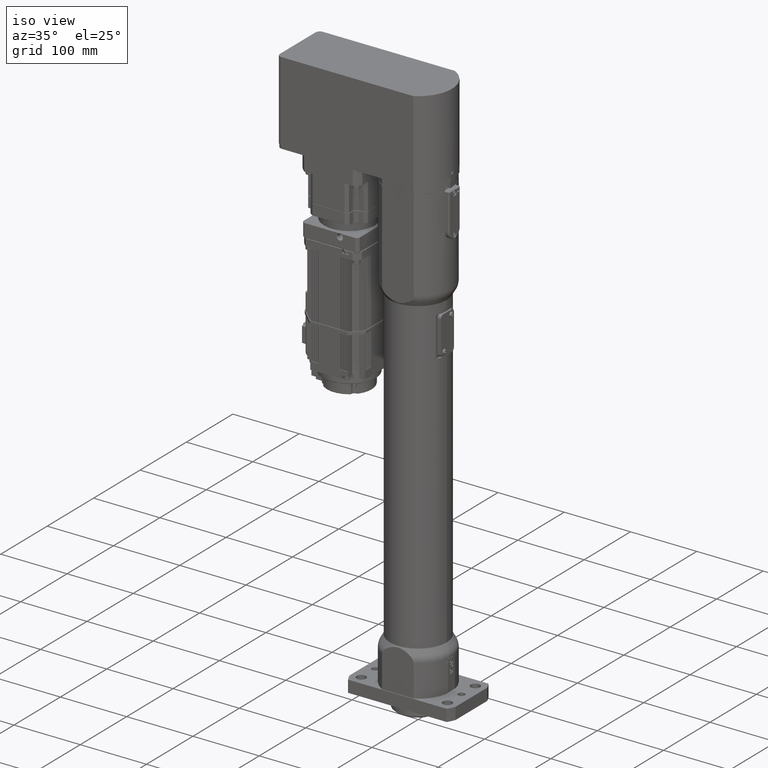
[diagram: clean part render]
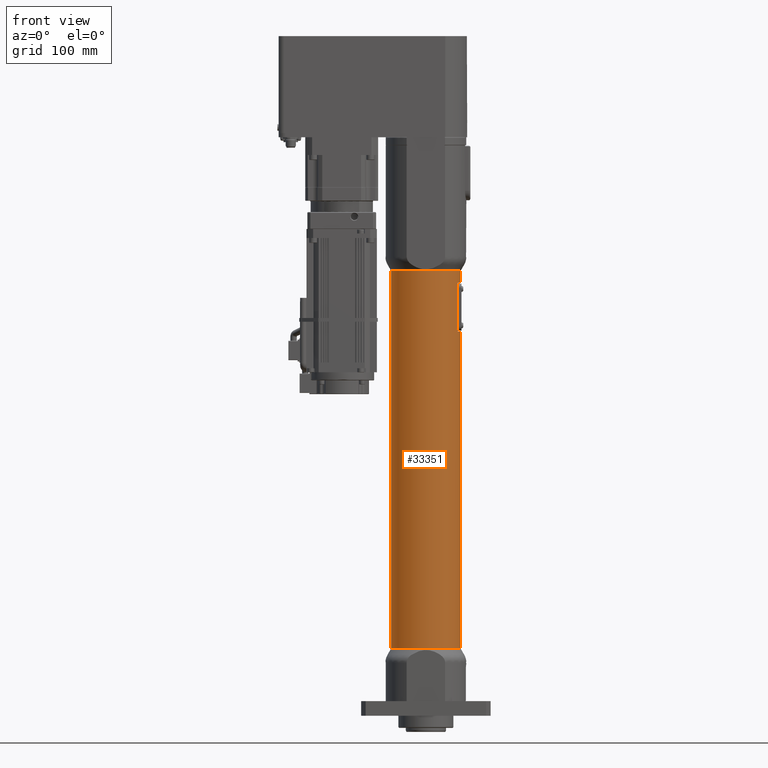
[diagram: tour spotlight — one face highlighted and labeled with its STEP entity id]
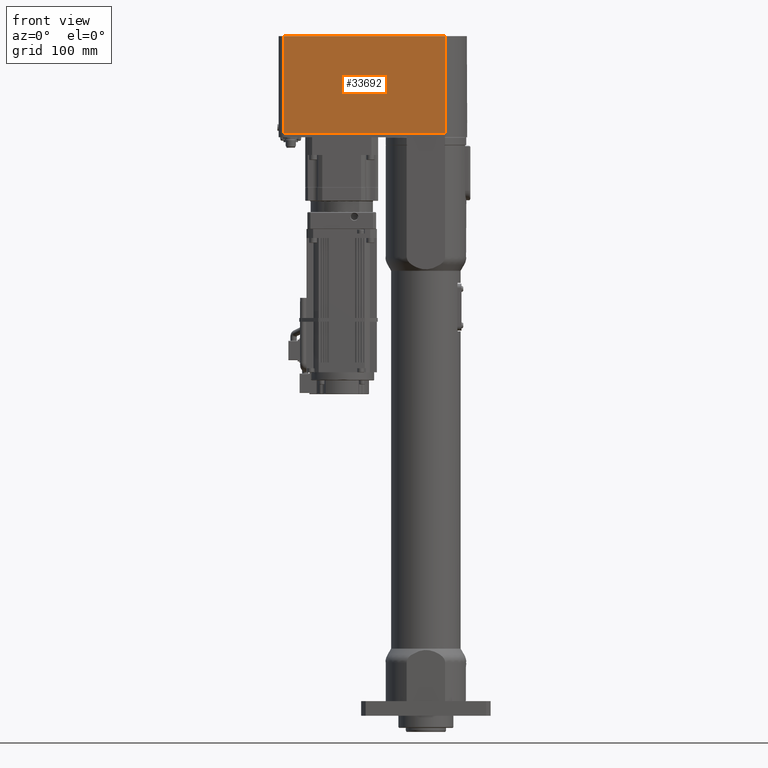
[diagram: tour spotlight — one face highlighted and labeled with its STEP entity id]
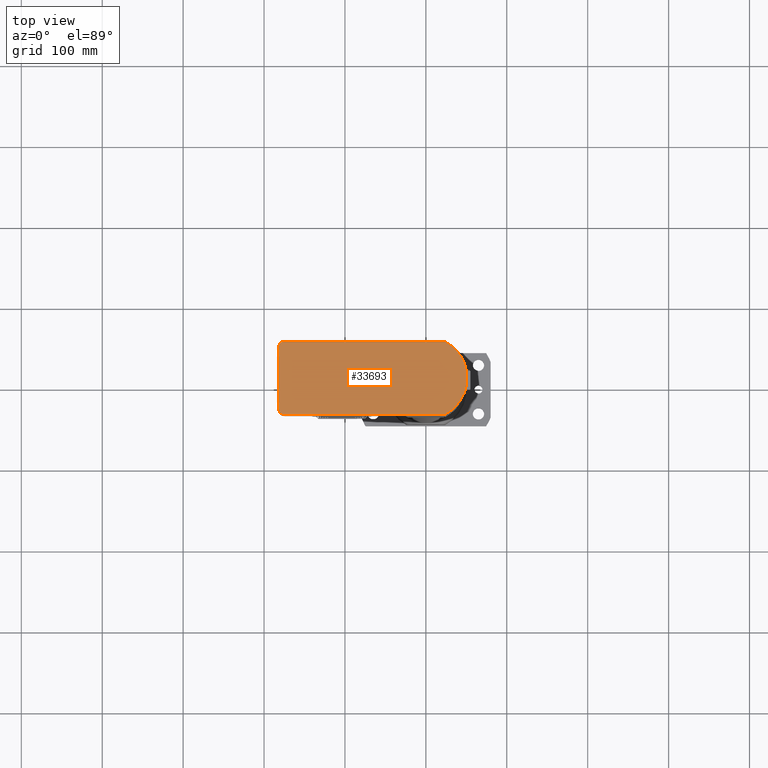
[diagram: tour spotlight — one face highlighted and labeled with its STEP entity id]
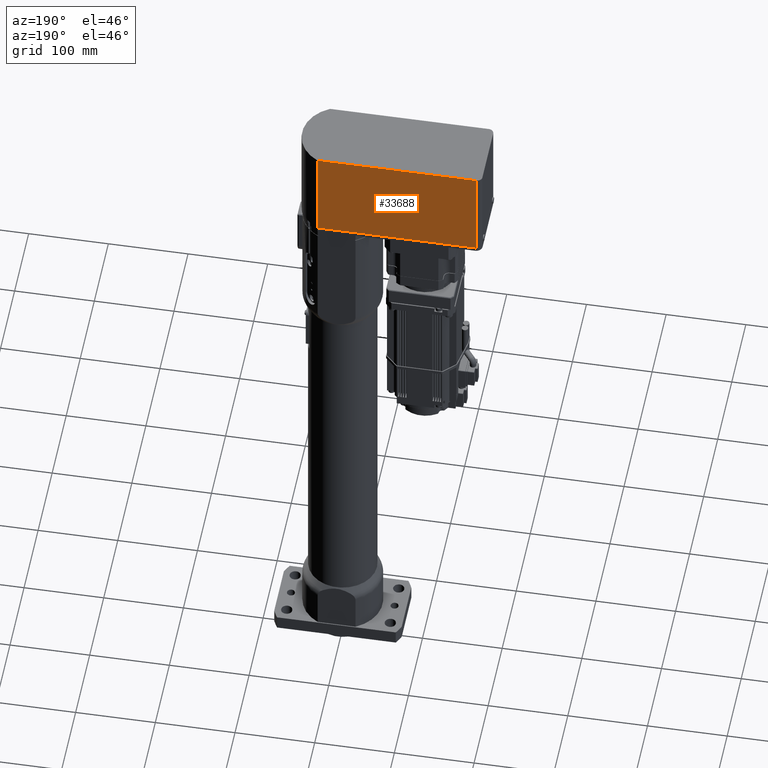
[diagram: tour spotlight — one face highlighted and labeled with its STEP entity id]
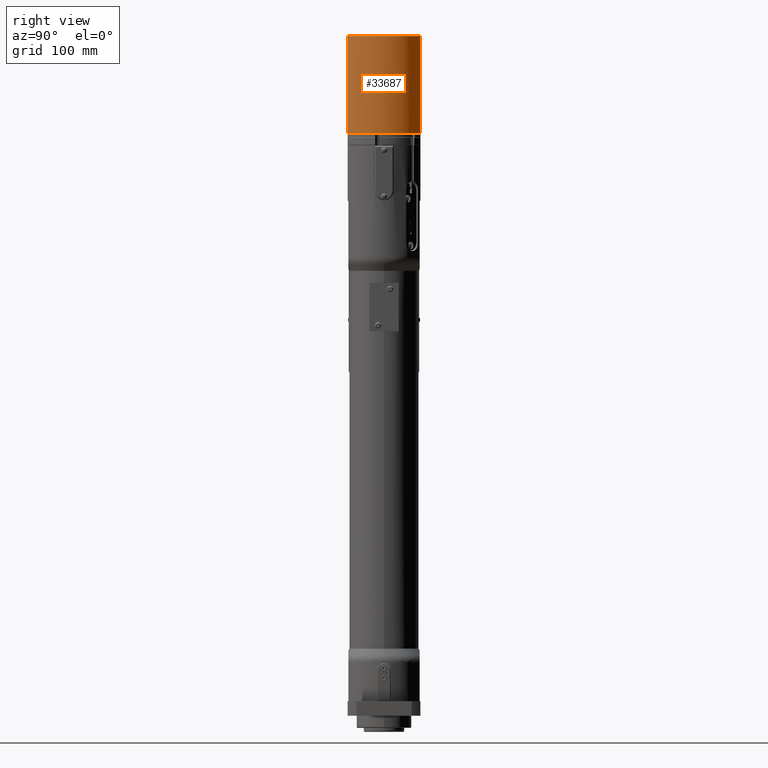
[diagram: tour spotlight — one face highlighted and labeled with its STEP entity id]
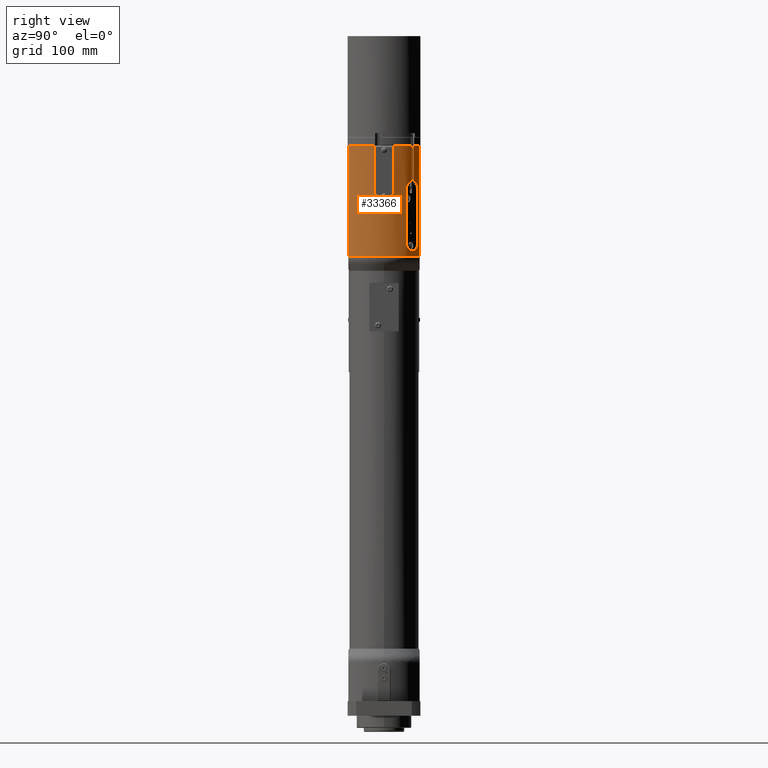
[diagram: tour spotlight — one face highlighted and labeled with its STEP entity id]
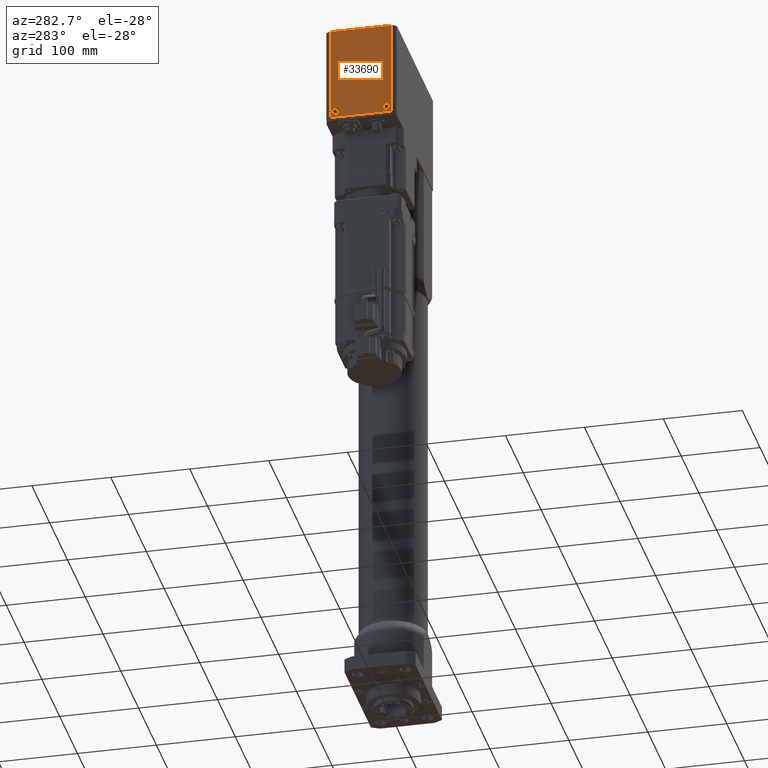
[diagram: tour spotlight — one face highlighted and labeled with its STEP entity id]
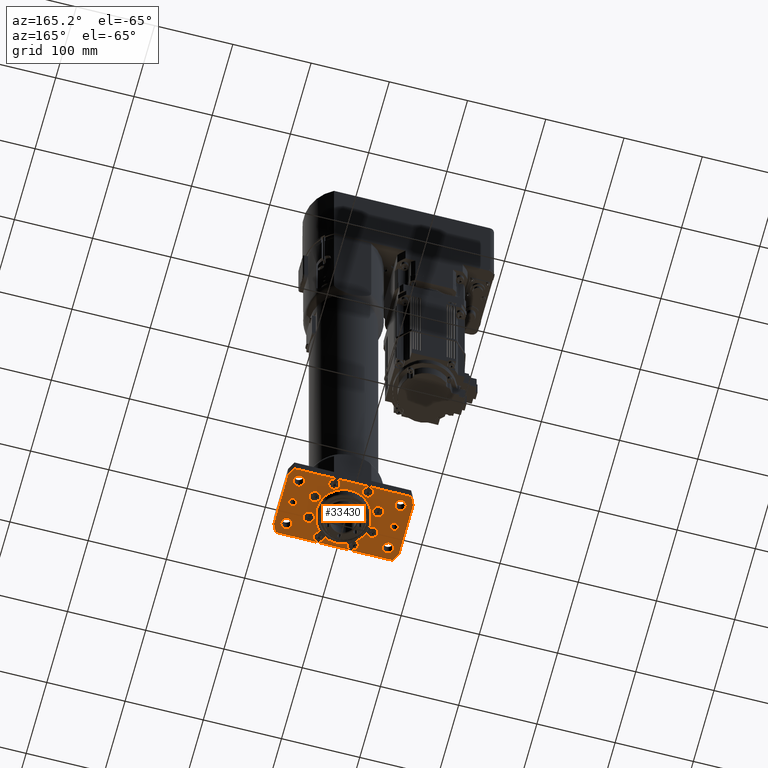
[diagram: tour spotlight — one face highlighted and labeled with its STEP entity id]
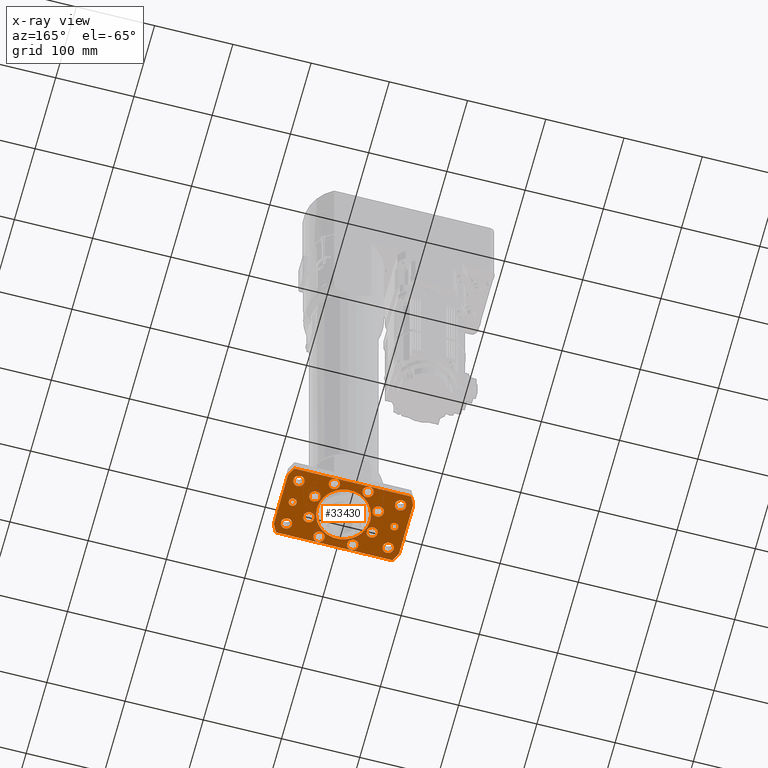
[diagram: x-ray of the same camera — body ghosted, this tour face saturated]
A machine part: a face-by-face anatomy tour. The part has 1806 B-rep faces; the first image is the clean iso view, then the 8 largest visible faces are spotlighted one at a time (largest first), each with its STEP entity span.

Face 1 — front view, entity #33351. In plain terms, the highlighted cylindrical surface (bore or boss wall) has radius 43 mm, axis along (-0, 0, 1).
Definition (entity closure, byte-faithful):
#2969=FACE_OUTER_BOUND('',#4852,.T.);
#4852=EDGE_LOOP('',(#25943,#25944,#25945,#25946,#25947,#25948,#25949,#25950,
#25951,#25952,#25953,#25954));
#6553=CIRCLE('',#35960,43.);
#6554=CIRCLE('',#35961,43.);
#6555=CIRCLE('',#35962,43.);
#6556=CIRCLE('',#35963,43.);
#6557=CIRCLE('',#35964,43.);
#6558=CIRCLE('',#35965,43.);
#9195=LINE('',#53810,#11891);
#9207=LINE('',#53862,#11903);
#9208=LINE('',#53866,#11904);
#9209=LINE('',#53870,#11905);
#11891=VECTOR('',#42825,10.);
#11903=VECTOR('',#42871,43.);
#11904=VECTOR('',#42874,10.);
#11905=VECTOR('',#42877,43.);
#14612=VERTEX_POINT('',#53807);
#14613=VERTEX_POINT('',#53809);
#14635=VERTEX_POINT('',#53859);
#14636=VERTEX_POINT('',#53861);
#14637=VERTEX_POINT('',#53863);
#14638=VERTEX_POINT('',#53865);
#14639=VERTEX_POINT('',#53867);
#14640=VERTEX_POINT('',#53869);
#18626=EDGE_CURVE('',#14613,#14612,#9195,.T.);
#18649=EDGE_CURVE('',#14635,#14635,#6553,.T.);
#18650=EDGE_CURVE('',#14635,#14636,#9207,.T.);
#18651=EDGE_CURVE('',#14636,#14637,#6554,.T.);
#18652=EDGE_CURVE('',#14637,#14638,#9208,.T.);
#18653=EDGE_CURVE('',#14638,#14639,#6555,.T.);
#18654=EDGE_CURVE('',#14639,#14640,#9209,.T.);
#18655=EDGE_CURVE('',#14640,#14640,#6556,.T.);
#18656=EDGE_CURVE('',#14639,#14613,#6557,.T.);
#18657=EDGE_CURVE('',#14612,#14636,#6558,.T.);
#25943=ORIENTED_EDGE('',*,*,#18649,.F.);
#25944=ORIENTED_EDGE('',*,*,#18650,.T.);
#25945=ORIENTED_EDGE('',*,*,#18651,.T.);
#25946=ORIENTED_EDGE('',*,*,#18652,.T.);
#25947=ORIENTED_EDGE('',*,*,#18653,.T.);
#25948=ORIENTED_EDGE('',*,*,#18654,.T.);
#25949=ORIENTED_EDGE('',*,*,#18655,.F.);
#25950=ORIENTED_EDGE('',*,*,#18654,.F.);
#25951=ORIENTED_EDGE('',*,*,#18656,.T.);
#25952=ORIENTED_EDGE('',*,*,#18626,.T.);
#25953=ORIENTED_EDGE('',*,*,#18657,.T.);
#25954=ORIENTED_EDGE('',*,*,#18650,.F.);
#30398=CYLINDRICAL_SURFACE('',#35959,43.);
#33351=ADVANCED_FACE('',(#2969),#30398,.T.);
#35959=AXIS2_PLACEMENT_3D('',#53858,#42867,#42868);
#35960=AXIS2_PLACEMENT_3D('',#53860,#42869,#42870);
#35961=AXIS2_PLACEMENT_3D('',#53864,#42872,#42873);
#35962=AXIS2_PLACEMENT_3D('',#53868,#42875,#42876);
#35963=AXIS2_PLACEMENT_3D('',#53871,#42878,#42879);
#35964=AXIS2_PLACEMENT_3D('',#53872,#42880,#42881);
#35965=AXIS2_PLACEMENT_3D('',#53873,#42882,#42883);
#42825=DIRECTION('',(-1.66741034889409E-13,7.79443320540401E-15,1.));
#42867=DIRECTION('center_axis',(-1.66741034889409E-13,7.79443320540401E-15,
1.));
#42868=DIRECTION('ref_axis',(-1.,1.29112725371859E-13,-1.6674103488941E-13));
#42869=DIRECTION('center_axis',(-1.66741034889409E-13,7.79443320540401E-15,
1.));
#42870=DIRECTION('ref_axis',(-1.,1.29112725371859E-13,-1.6674103488941E-13));
#42871=DIRECTION('',(1.66741034889409E-13,-7.79443320540401E-15,-1.));
#42872=DIRECTION('center_axis',(-1.66741034889409E-13,7.79443320540401E-15,
1.));
#42873=DIRECTION('ref_axis',(-1.,1.29112725371859E-13,-1.6674103488941E-13));
#42874=DIRECTION('',(1.66741034889409E-13,-7.79443320540401E-15,-1.));
#42875=DIRECTION('center_axis',(1.66741034889409E-13,-7.79443320540401E-15,
-1.));
#42876=DIRECTION('ref_axis',(-1.,1.29112725371859E-13,-1.6674103488941E-13));
#42877=DIRECTION('',(1.66741034889409E-13,-7.79443320540401E-15,-1.));
#42878=DIRECTION('center_axis',(1.66741034889409E-13,-7.79443320540401E-15,
-1.));
#42879=DIRECTION('ref_axis',(-1.,1.29112725371859E-13,-1.6674103488941E-13));
#42880=DIRECTION('center_axis',(1.66741034889409E-13,-7.79443320540401E-15,
-1.));
#42881=DIRECTION('ref_axis',(-1.,1.29112725371859E-13,-1.6674103488941E-13));
#42882=DIRECTION('center_axis',(-1.66741034889409E-13,7.79443320540401E-15,
1.));
#42883=DIRECTION('ref_axis',(-1.,1.29112725371859E-13,-1.6674103488941E-13));
#53807=CARTESIAN_POINT('',(39.0000000000456,-18.1107702762981,535.000000000062));
#53809=CARTESIAN_POINT('',(39.0000000000556,-18.1107702762986,475.000000000062));
#53810=CARTESIAN_POINT('',(39.000000000121,-18.1107702763017,83.0000000000619));
#53858=CARTESIAN_POINT('Origin',(1.23301118377245E-10,-2.17872019682475E-11,
83.0000000000553));
#53859=CARTESIAN_POINT('',(43.0000000000454,-2.36937828710775E-11,550.000000000063));
#53860=CARTESIAN_POINT('Origin',(4.54330550838906E-11,-1.81472016613238E-11,
550.000000000055));
#53861=CARTESIAN_POINT('',(43.0000000000479,-2.38106993691585E-11,535.000000000063));
#53862=CARTESIAN_POINT('',(43.0000000001233,-2.73337831780011E-11,83.0000000000625));
#53863=CARTESIAN_POINT('',(39.0000000000503,18.1107702762515,535.000000000062));
#53864=CARTESIAN_POINT('Origin',(4.79341706072317E-11,-1.82641181594049E-11,
535.000000000055));
#53865=CARTESIAN_POINT('',(39.0000000000603,18.1107702762511,475.000000000062));
#53866=CARTESIAN_POINT('',(39.0000000001256,18.110770276248,83.0000000000617));
#53867=CARTESIAN_POINT('',(43.0000000000579,-2.42783653614828E-11,475.000000000063));
#53868=CARTESIAN_POINT('Origin',(5.79386327005963E-11,-1.87317841517291E-11,
475.000000000055));
#53869=CARTESIAN_POINT('',(43.0000000001233,-2.73337831780011E-11,83.0000000000625));
#53870=CARTESIAN_POINT('',(43.0000000001233,-2.73337831780011E-11,83.0000000000625));
#53871=CARTESIAN_POINT('Origin',(1.23301118377245E-10,-2.17872019682475E-11,
83.0000000000553));
#53872=CARTESIAN_POINT('Origin',(5.79386327005963E-11,-1.87317841517291E-11,
475.000000000055));
#53873=CARTESIAN_POINT('Origin',(4.79341706072317E-11,-1.82641181594049E-11,
535.000000000055));

Face 2 — front view, entity #33692. In plain terms, the highlighted planar face has unit normal (-0, -1, 0).
Definition (entity closure, byte-faithful):
#1405=PLANE('',#36620);
#3310=FACE_OUTER_BOUND('',#5243,.T.);
#5243=EDGE_LOOP('',(#27622,#27623,#27624,#27625,#27626));
#9594=LINE('',#56416,#12290);
#9605=LINE('',#56490,#12301);
#9606=LINE('',#56494,#12302);
#9607=LINE('',#56495,#12303);
#9608=LINE('',#56496,#12304);
#12290=VECTOR('',#44554,10.);
#12301=VECTOR('',#44585,10.);
#12302=VECTOR('',#44590,10.);
#12303=VECTOR('',#44591,10.);
#12304=VECTOR('',#44592,10.);
#15142=VERTEX_POINT('',#56405);
#15146=VERTEX_POINT('',#56414);
#15161=VERTEX_POINT('',#56487);
#15162=VERTEX_POINT('',#56489);
#15163=VERTEX_POINT('',#56493);
#19480=EDGE_CURVE('',#15142,#15146,#9594,.T.);
#19499=EDGE_CURVE('',#15161,#15162,#9605,.T.);
#19501=EDGE_CURVE('',#15161,#15163,#9606,.T.);
#19502=EDGE_CURVE('',#15163,#15142,#9607,.T.);
#19503=EDGE_CURVE('',#15162,#15146,#9608,.T.);
#27622=ORIENTED_EDGE('',*,*,#19501,.T.);
#27623=ORIENTED_EDGE('',*,*,#19502,.T.);
#27624=ORIENTED_EDGE('',*,*,#19480,.T.);
#27625=ORIENTED_EDGE('',*,*,#19503,.F.);
#27626=ORIENTED_EDGE('',*,*,#19499,.F.);
#33692=ADVANCED_FACE('',(#3310),#1405,.T.);
#36620=AXIS2_PLACEMENT_3D('',#56492,#44588,#44589);
#44554=DIRECTION('',(1.10637715304089E-14,7.79443320540413E-15,1.));
#44585=DIRECTION('',(1.10637715304089E-14,7.79443320540413E-15,1.));
#44588=DIRECTION('center_axis',(-8.51713161579732E-14,-1.,7.79443320540508E-15));
#44589=DIRECTION('ref_axis',(1.,-8.51713161579733E-14,-1.10637715304082E-14));
#44590=DIRECTION('',(1.,-8.51713161579733E-14,-1.10637715304082E-14));
#44591=DIRECTION('',(1.,-8.51713161579733E-14,-1.10637715304082E-14));
#44592=DIRECTION('',(1.,-8.51713161579733E-14,-1.10637715304082E-14));
#56405=CARTESIAN_POINT('',(24.0030669590389,-45.0000000000258,720.000000000021));
#56414=CARTESIAN_POINT('',(24.0030669590402,-45.0000000000249,840.000000000021));
#56416=CARTESIAN_POINT('',(24.0030669590389,-45.0000000000258,720.000000000021));
#56487=CARTESIAN_POINT('',(-175.396933040944,-45.0000000000089,720.000000000024));
#56489=CARTESIAN_POINT('',(-175.396933040943,-45.0000000000079,840.000000000024));
#56490=CARTESIAN_POINT('',(-175.396933040944,-45.0000000000089,720.000000000024));
#56492=CARTESIAN_POINT('Origin',(-175.396933040944,-45.0000000000089,720.000000000024));
#56493=CARTESIAN_POINT('',(-173.996933041057,-45.0000000000165,719.999999999992));
#56494=CARTESIAN_POINT('',(-175.396933040944,-45.0000000000089,720.000000000024));
#56495=CARTESIAN_POINT('',(-175.396933040944,-45.0000000000089,720.000000000024));
#56496=CARTESIAN_POINT('',(-175.396933040943,-45.0000000000079,840.000000000024));

Face 3 — top view, entity #33693. In plain terms, the highlighted planar face has unit normal (0, 0, 1).
Definition (entity closure, byte-faithful):
#1406=PLANE('',#36621);
#3311=FACE_OUTER_BOUND('',#5244,.T.);
#5244=EDGE_LOOP('',(#27627,#27628,#27629,#27630,#27631,#27632));
#6859=CIRCLE('',#36608,51.);
#6863=CIRCLE('',#36614,6.6);
#6866=CIRCLE('',#36619,6.6);
#9598=LINE('',#56467,#12294);
#9604=LINE('',#56483,#12300);
#9608=LINE('',#56496,#12304);
#12294=VECTOR('',#44564,10.);
#12300=VECTOR('',#44578,10.);
#12304=VECTOR('',#44592,10.);
#15145=VERTEX_POINT('',#56412);
#15146=VERTEX_POINT('',#56414);
#15153=VERTEX_POINT('',#56465);
#15155=VERTEX_POINT('',#56471);
#15159=VERTEX_POINT('',#56481);
#15162=VERTEX_POINT('',#56489);
#19479=EDGE_CURVE('',#15146,#15145,#6859,.T.);
#19488=EDGE_CURVE('',#15145,#15153,#9598,.T.);
#19491=EDGE_CURVE('',#15153,#15155,#6863,.T.);
#19496=EDGE_CURVE('',#15155,#15159,#9604,.T.);
#19500=EDGE_CURVE('',#15159,#15162,#6866,.T.);
#19503=EDGE_CURVE('',#15162,#15146,#9608,.T.);
#27627=ORIENTED_EDGE('',*,*,#19479,.T.);
#27628=ORIENTED_EDGE('',*,*,#19488,.T.);
#27629=ORIENTED_EDGE('',*,*,#19491,.T.);
#27630=ORIENTED_EDGE('',*,*,#19496,.T.);
#27631=ORIENTED_EDGE('',*,*,#19500,.T.);
#27632=ORIENTED_EDGE('',*,*,#19503,.T.);
#33693=ADVANCED_FACE('',(#3311),#1406,.T.);
#36608=AXIS2_PLACEMENT_3D('',#56415,#44552,#44553);
#36614=AXIS2_PLACEMENT_3D('',#56473,#44570,#44571);
#36619=AXIS2_PLACEMENT_3D('',#56491,#44586,#44587);
#36621=AXIS2_PLACEMENT_3D('',#56497,#44593,#44594);
#44552=DIRECTION('center_axis',(1.10637715304089E-14,7.79443320540413E-15,
1.));
#44553=DIRECTION('ref_axis',(0.470588235294042,-0.882352941176511,1.67096034340061E-15));
#44564=DIRECTION('',(-1.,8.58839969360677E-14,1.10637715304082E-14));
#44570=DIRECTION('center_axis',(1.10637715304089E-14,7.79443320540413E-15,
1.));
#44571=DIRECTION('ref_axis',(2.6565350366032E-12,1.,-7.79443320543353E-15));
#44578=DIRECTION('',(-8.55276565470204E-14,-1.,7.79443320540508E-15));
#44586=DIRECTION('center_axis',(1.10637715304089E-14,7.79443320540413E-15,
1.));
#44587=DIRECTION('ref_axis',(-1.,2.63567630098905E-12,1.10637715303883E-14));
#44592=DIRECTION('',(1.,-8.51713161579733E-14,-1.10637715304082E-14));
#44593=DIRECTION('center_axis',(1.10637715304089E-14,7.79443320540413E-15,
1.));
#44594=DIRECTION('ref_axis',(1.,-8.55276565470205E-14,-1.10637715304082E-14));
#56412=CARTESIAN_POINT('',(24.0030669590478,44.9999999999751,840.000000000021));
#56414=CARTESIAN_POINT('',(24.0030669590402,-45.0000000000249,840.000000000021));
#56415=CARTESIAN_POINT('Origin',(0.00306695904402687,-2.28499149908458E-11,
840.000000000021));
#56465=CARTESIAN_POINT('',(-175.396933040935,44.9999999999922,840.000000000023));
#56467=CARTESIAN_POINT('',(24.0030669590478,44.9999999999751,840.000000000021));
#56471=CARTESIAN_POINT('',(-181.996933040953,38.3999999999758,840.000000000023));
#56473=CARTESIAN_POINT('Origin',(-175.396933040953,38.3999999999922,840.000000000023));
#56481=CARTESIAN_POINT('',(-181.996933040959,-38.3999999999904,840.000000000024));
#56483=CARTESIAN_POINT('',(-181.996933040953,38.3999999999758,840.000000000023));
#56489=CARTESIAN_POINT('',(-175.396933040943,-45.0000000000079,840.000000000024));
#56491=CARTESIAN_POINT('Origin',(-175.396933040959,-38.4000000000078,840.000000000024));
#56496=CARTESIAN_POINT('',(-175.396933040943,-45.0000000000079,840.000000000024));
#56497=CARTESIAN_POINT('Origin',(-75.8327038296232,-1.63620018801676E-11,
840.000000000022));

Face 4 — auxiliary view, entity #33688. In plain terms, the highlighted planar face has unit normal (0, 1, -0).
Definition (entity closure, byte-faithful):
#1403=PLANE('',#36611);
#3306=FACE_OUTER_BOUND('',#5237,.T.);
#5237=EDGE_LOOP('',(#27601,#27602,#27603,#27604,#27605));
#9593=LINE('',#56413,#12289);
#9595=LINE('',#56462,#12291);
#9596=LINE('',#56464,#12292);
#9597=LINE('',#56466,#12293);
#9598=LINE('',#56467,#12294);
#12289=VECTOR('',#44551,10.);
#12291=VECTOR('',#44561,10.);
#12292=VECTOR('',#44562,10.);
#12293=VECTOR('',#44563,10.);
#12294=VECTOR('',#44564,10.);
#15144=VERTEX_POINT('',#56410);
#15145=VERTEX_POINT('',#56412);
#15151=VERTEX_POINT('',#56461);
#15152=VERTEX_POINT('',#56463);
#15153=VERTEX_POINT('',#56465);
#19478=EDGE_CURVE('',#15144,#15145,#9593,.T.);
#19485=EDGE_CURVE('',#15144,#15151,#9595,.T.);
#19486=EDGE_CURVE('',#15151,#15152,#9596,.T.);
#19487=EDGE_CURVE('',#15152,#15153,#9597,.T.);
#19488=EDGE_CURVE('',#15145,#15153,#9598,.T.);
#27601=ORIENTED_EDGE('',*,*,#19485,.T.);
#27602=ORIENTED_EDGE('',*,*,#19486,.T.);
#27603=ORIENTED_EDGE('',*,*,#19487,.T.);
#27604=ORIENTED_EDGE('',*,*,#19488,.F.);
#27605=ORIENTED_EDGE('',*,*,#19478,.F.);
#33688=ADVANCED_FACE('',(#3306),#1403,.T.);
#36611=AXIS2_PLACEMENT_3D('',#56460,#44559,#44560);
#44551=DIRECTION('',(1.10637715304089E-14,7.79443320540413E-15,1.));
#44559=DIRECTION('center_axis',(8.58839969360676E-14,1.,-7.79443320540508E-15));
#44560=DIRECTION('ref_axis',(-1.,8.58839969360677E-14,1.10637715304082E-14));
#44561=DIRECTION('',(-1.,8.58839969360677E-14,1.10637715304082E-14));
#44562=DIRECTION('',(-1.,8.58839969360677E-14,1.10637715304082E-14));
#44563=DIRECTION('',(1.10637715304089E-14,7.79443320540413E-15,1.));
#44564=DIRECTION('',(-1.,8.58839969360677E-14,1.10637715304082E-14));
#56410=CARTESIAN_POINT('',(24.0030669590465,44.9999999999742,720.000000000021));
#56412=CARTESIAN_POINT('',(24.0030669590478,44.9999999999751,840.000000000021));
#56413=CARTESIAN_POINT('',(24.0030669590465,44.9999999999742,720.000000000021));
#56460=CARTESIAN_POINT('Origin',(24.0030669590465,44.9999999999742,720.000000000021));
#56461=CARTESIAN_POINT('',(-173.996933041053,44.9999999999836,719.999999999991));
#56462=CARTESIAN_POINT('',(24.0030669590465,44.9999999999742,720.000000000021));
#56463=CARTESIAN_POINT('',(-175.396933040937,44.9999999999913,720.000000000023));
#56464=CARTESIAN_POINT('',(24.0030669590465,44.9999999999742,720.000000000021));
#56465=CARTESIAN_POINT('',(-175.396933040935,44.9999999999922,840.000000000023));
#56466=CARTESIAN_POINT('',(-175.396933040937,44.9999999999913,720.000000000023));
#56467=CARTESIAN_POINT('',(24.0030669590478,44.9999999999751,840.000000000021));

Face 5 — right view, entity #33687. In plain terms, the highlighted cylindrical surface (partial cylindrical patch) has radius 51 mm, axis along (0, 0, 1).
Definition (entity closure, byte-faithful):
#559=FACE_BOUND('',#5236,.T.);
#1813=B_SPLINE_CURVE_WITH_KNOTS('',3,(#56419,#56420,#56421,#56422,#56423,
#56424,#56425,#56426,#56427,#56428,#56429,#56430,#56431,#56432,#56433,#56434,
#56435,#56436,#56437),.UNSPECIFIED.,.F.,.F.,(4,2,2,2,3,2,2,2,4),(-0.301461076527373,
-0.226077670894244,-0.150694265261116,-0.0753471326305579,0.,0.075347132630558,
0.150694265261116,0.226077670894244,0.301461076527373),.UNSPECIFIED.);
#1814=B_SPLINE_CURVE_WITH_KNOTS('',3,(#56441,#56442,#56443,#56444,#56445,
#56446,#56447,#56448,#56449,#56450,#56451,#56452,#56453,#56454,#56455,#56456,
#56457,#56458),.UNSPECIFIED.,.F.,.F.,(4,2,2,2,2,2,2,2,4),(0.30136199645185,
0.376745402084978,0.452128807718106,0.527475940348664,0.602823072979222,
0.67817020560978,0.753517338240339,0.828900743873467,0.904284149506595),
 .UNSPECIFIED.);
#3305=FACE_OUTER_BOUND('',#5235,.T.);
#5235=EDGE_LOOP('',(#27589,#27590,#27591,#27592,#27593,#27594,#27595,#27596));
#5236=EDGE_LOOP('',(#27597,#27598,#27599,#27600));
#6854=CIRCLE('',#36602,51.);
#6855=CIRCLE('',#36604,51.);
#6856=CIRCLE('',#36605,51.);
#6857=CIRCLE('',#36606,51.);
#6858=CIRCLE('',#36607,51.);
#6859=CIRCLE('',#36608,51.);
#6860=CIRCLE('',#36609,51.);
#6861=CIRCLE('',#36610,51.);
#9593=LINE('',#56413,#12289);
#9594=LINE('',#56416,#12290);
#12289=VECTOR('',#44551,10.);
#12290=VECTOR('',#44554,10.);
#12880=VERTEX_POINT('',#47502);
#12884=VERTEX_POINT('',#47511);
#15141=VERTEX_POINT('',#56401);
#15142=VERTEX_POINT('',#56405);
#15143=VERTEX_POINT('',#56408);
#15144=VERTEX_POINT('',#56410);
#15145=VERTEX_POINT('',#56412);
#15146=VERTEX_POINT('',#56414);
#15147=VERTEX_POINT('',#56417);
#15148=VERTEX_POINT('',#56418);
#15149=VERTEX_POINT('',#56438);
#15150=VERTEX_POINT('',#56440);
#19473=EDGE_CURVE('',#12880,#15141,#6854,.T.);
#19474=EDGE_CURVE('',#15142,#12880,#6855,.T.);
#19475=EDGE_CURVE('',#15141,#12884,#6856,.T.);
#19476=EDGE_CURVE('',#12884,#15143,#6857,.T.);
#19477=EDGE_CURVE('',#15143,#15144,#6858,.T.);
#19478=EDGE_CURVE('',#15144,#15145,#9593,.T.);
#19479=EDGE_CURVE('',#15146,#15145,#6859,.T.);
#19480=EDGE_CURVE('',#15142,#15146,#9594,.T.);
#19481=EDGE_CURVE('',#15147,#15148,#1813,.T.);
#19482=EDGE_CURVE('',#15148,#15149,#6860,.T.);
#19483=EDGE_CURVE('',#15149,#15150,#1814,.T.);
#19484=EDGE_CURVE('',#15150,#15147,#6861,.T.);
#27589=ORIENTED_EDGE('',*,*,#19474,.T.);
#27590=ORIENTED_EDGE('',*,*,#19473,.T.);
#27591=ORIENTED_EDGE('',*,*,#19475,.T.);
#27592=ORIENTED_EDGE('',*,*,#19476,.T.);
#27593=ORIENTED_EDGE('',*,*,#19477,.T.);
#27594=ORIENTED_EDGE('',*,*,#19478,.T.);
#27595=ORIENTED_EDGE('',*,*,#19479,.F.);
#27596=ORIENTED_EDGE('',*,*,#19480,.F.);
#27597=ORIENTED_EDGE('',*,*,#19481,.T.);
#27598=ORIENTED_EDGE('',*,*,#19482,.T.);
#27599=ORIENTED_EDGE('',*,*,#19483,.T.);
#27600=ORIENTED_EDGE('',*,*,#19484,.T.);
#30505=CYLINDRICAL_SURFACE('',#36603,51.);
#33687=ADVANCED_FACE('',(#3305,#559),#30505,.T.);
#36602=AXIS2_PLACEMENT_3D('',#56403,#44539,#44540);
#36603=AXIS2_PLACEMENT_3D('',#56404,#44541,#44542);
#36604=AXIS2_PLACEMENT_3D('',#56406,#44543,#44544);
#36605=AXIS2_PLACEMENT_3D('',#56407,#44545,#44546);
#36606=AXIS2_PLACEMENT_3D('',#56409,#44547,#44548);
#36607=AXIS2_PLACEMENT_3D('',#56411,#44549,#44550);
#36608=AXIS2_PLACEMENT_3D('',#56415,#44552,#44553);
#36609=AXIS2_PLACEMENT_3D('',#56439,#44555,#44556);
#36610=AXIS2_PLACEMENT_3D('',#56459,#44557,#44558);
#44539=DIRECTION('center_axis',(1.10637715304089E-14,7.79443320540413E-15,
1.));
#44540=DIRECTION('ref_axis',(1.,-8.55276565470205E-14,-1.10637715304082E-14));
#44541=DIRECTION('center_axis',(1.10637715304089E-14,7.79443320540413E-15,
1.));
#44542=DIRECTION('ref_axis',(1.,-8.55276565470205E-14,-1.10637715304082E-14));
#44543=DIRECTION('center_axis',(1.10637715304089E-14,7.79443320540413E-15,
1.));
#44544=DIRECTION('ref_axis',(1.,-8.55276565470205E-14,-1.10637715304082E-14));
#44545=DIRECTION('center_axis',(1.10637715304089E-14,7.79443320540413E-15,
1.));
#44546=DIRECTION('ref_axis',(1.,-8.55276565470205E-14,-1.10637715304082E-14));
#44547=DIRECTION('center_axis',(1.10637715304089E-14,7.79443320540413E-15,
1.));
#44548=DIRECTION('ref_axis',(1.,-8.55276565470205E-14,-1.10637715304082E-14));
#44549=DIRECTION('center_axis',(1.10637715304089E-14,7.79443320540413E-15,
1.));
#44550=DIRECTION('ref_axis',(1.,-8.55276565470205E-14,-1.10637715304082E-14));
#44551=DIRECTION('',(1.10637715304089E-14,7.79443320540413E-15,1.));
#44552=DIRECTION('center_axis',(1.10637715304089E-14,7.79443320540413E-15,
1.));
#44553=DIRECTION('ref_axis',(0.470588235294042,-0.882352941176511,1.67096034340061E-15));
#44554=DIRECTION('',(1.10637715304089E-14,7.79443320540413E-15,1.));
#44555=DIRECTION('center_axis',(1.10637715304089E-14,7.79443320540413E-15,
1.));
#44556=DIRECTION('ref_axis',(1.,-8.55276565470205E-14,-1.10637715304082E-14));
#44557=DIRECTION('center_axis',(-1.10637715304089E-14,-7.79443320540413E-15,
-1.));
#44558=DIRECTION('ref_axis',(1.,-8.55276565470205E-14,-1.10637715304082E-14));
#47502=CARTESIAN_POINT('',(49.8026653508996,-11.0000000000258,720.000000000029));
#47511=CARTESIAN_POINT('',(38.1233483469411,33.8798486847034,720.000000000027));
#56401=CARTESIAN_POINT('',(50.9147552043764,-3.00000000002584,720.000000000029));
#56403=CARTESIAN_POINT('Origin',(0.00306695904271237,-2.37852469754943E-11,
720.000000000021));
#56404=CARTESIAN_POINT('Origin',(0.00306695904271237,-2.37852469754943E-11,
720.000000000021));
#56405=CARTESIAN_POINT('',(24.0030669590389,-45.0000000000258,720.000000000021));
#56406=CARTESIAN_POINT('Origin',(0.00306695904271237,-2.37852469754943E-11,
720.000000000021));
#56407=CARTESIAN_POINT('Origin',(0.00306695904271237,-2.37852469754943E-11,
720.000000000021));
#56408=CARTESIAN_POINT('',(33.8817466153871,38.1213203435344,720.000000000026));
#56409=CARTESIAN_POINT('Origin',(0.00306695904271237,-2.37852469754943E-11,
720.000000000021));
#56410=CARTESIAN_POINT('',(24.0030669590465,44.9999999999742,720.000000000021));
#56411=CARTESIAN_POINT('Origin',(0.00306695904271237,-2.37852469754943E-11,
720.000000000021));
#56412=CARTESIAN_POINT('',(24.0030669590478,44.9999999999751,840.000000000021));
#56413=CARTESIAN_POINT('',(24.0030669590465,44.9999999999742,720.000000000021));
#56414=CARTESIAN_POINT('',(24.0030669590402,-45.0000000000249,840.000000000021));
#56415=CARTESIAN_POINT('Origin',(0.00306695904402687,-2.28499149908458E-11,
840.000000000021));
#56416=CARTESIAN_POINT('',(24.0030669590389,-45.0000000000258,720.000000000021));
#56417=CARTESIAN_POINT('',(50.9932620949705,-1.00000000002811,724.000000000021));
#56418=CARTESIAN_POINT('',(50.9932620949706,-1.00000000002808,728.000000000021));
#56419=CARTESIAN_POINT('Ctrl Pts',(50.9932620949705,-1.00000000002811,724.000000000021));
#56420=CARTESIAN_POINT('Ctrl Pts',(50.9883350749945,-1.25122971004406,724.000000000021));
#56421=CARTESIAN_POINT('Ctrl Pts',(50.9810325930612,-1.51914548708386,724.050225630543));
#56422=CARTESIAN_POINT('Ctrl Pts',(50.96396276341,-2.01193489233677,724.254399845593));
#56423=CARTESIAN_POINT('Ctrl Pts',(50.9543011455985,-2.23681323510012,724.408345876954));
#56424=CARTESIAN_POINT('Ctrl Pts',(50.9374746517474,-2.59184898738695,724.763462112987));
#56425=CARTESIAN_POINT('Ctrl Pts',(50.9292041966052,-2.74572221427339,724.988292873055));
#56426=CARTESIAN_POINT('Ctrl Pts',(50.9177910467065,-2.94979923126766,725.480981401731));
#56427=CARTESIAN_POINT('Ctrl Pts',(50.914755204474,-3.0000000000281,725.748842891252));
#56428=CARTESIAN_POINT('Ctrl Pts',(50.914755204474,-3.00000000002809,726.000000000021));
#56429=CARTESIAN_POINT('Ctrl Pts',(50.914755204474,-3.00000000002809,726.251157108789));
#56430=CARTESIAN_POINT('Ctrl Pts',(50.9177910467065,-2.94979923126765,726.519018598311));
#56431=CARTESIAN_POINT('Ctrl Pts',(50.9292041966052,-2.74572221427337,727.011707126987));
#56432=CARTESIAN_POINT('Ctrl Pts',(50.9374746517475,-2.59184898738693,727.236537887054));
#56433=CARTESIAN_POINT('Ctrl Pts',(50.9543011455985,-2.23681323510009,727.591654123088));
#56434=CARTESIAN_POINT('Ctrl Pts',(50.96396276341,-2.01193489233675,727.745600154448));
#56435=CARTESIAN_POINT('Ctrl Pts',(50.9810325930613,-1.51914548708384,727.949774369498));
#56436=CARTESIAN_POINT('Ctrl Pts',(50.9883350749945,-1.25122971004403,728.000000000021));
#56437=CARTESIAN_POINT('Ctrl Pts',(50.9932620949706,-1.00000000002808,728.000000000021));
#56438=CARTESIAN_POINT('',(50.9932620949707,0.999999999971916,728.000000000021));
#56439=CARTESIAN_POINT('Origin',(0.00306695904278342,-2.3722891509851E-11,
728.000000000021));
#56440=CARTESIAN_POINT('',(50.9932620949707,0.999999999971885,724.000000000021));
#56441=CARTESIAN_POINT('Ctrl Pts',(50.9932620949707,0.999999999971919,728.000000000021));
#56442=CARTESIAN_POINT('Ctrl Pts',(50.9883350749947,1.25122970998787,728.000000000021));
#56443=CARTESIAN_POINT('Ctrl Pts',(50.9810325930615,1.51914548702767,727.949774369498));
#56444=CARTESIAN_POINT('Ctrl Pts',(50.9639627634104,2.01193489228058,727.745600154448));
#56445=CARTESIAN_POINT('Ctrl Pts',(50.9543011455989,2.23681323504393,727.591654123088));
#56446=CARTESIAN_POINT('Ctrl Pts',(50.9374746517479,2.59184898733076,727.236537887054));
#56447=CARTESIAN_POINT('Ctrl Pts',(50.9292041966057,2.7457222142172,727.011707126987));
#56448=CARTESIAN_POINT('Ctrl Pts',(50.917791046707,2.94979923121147,726.519018598311));
#56449=CARTESIAN_POINT('Ctrl Pts',(50.9147552044745,2.99999999997191,726.251157108789));
#56450=CARTESIAN_POINT('Ctrl Pts',(50.9147552044745,2.99999999997191,725.748842891252));
#56451=CARTESIAN_POINT('Ctrl Pts',(50.917791046707,2.94979923121146,725.480981401731));
#56452=CARTESIAN_POINT('Ctrl Pts',(50.9292041966057,2.74572221421718,724.988292873055));
#56453=CARTESIAN_POINT('Ctrl Pts',(50.9374746517479,2.59184898733074,724.763462112987));
#56454=CARTESIAN_POINT('Ctrl Pts',(50.9543011455989,2.2368132350439,724.408345876954));
#56455=CARTESIAN_POINT('Ctrl Pts',(50.9639627634104,2.01193489228055,724.254399845593));
#56456=CARTESIAN_POINT('Ctrl Pts',(50.9810325930615,1.51914548702764,724.050225630543));
#56457=CARTESIAN_POINT('Ctrl Pts',(50.9883350749947,1.25122970998783,724.000000000021));
#56458=CARTESIAN_POINT('Ctrl Pts',(50.9932620949707,0.999999999971882,724.000000000021));
#56459=CARTESIAN_POINT('Origin',(0.0030669590427479,-2.37540692426727E-11,
724.000000000021));

Face 6 — right view, entity #33366. In plain terms, the highlighted cylindrical surface (partial cylindrical patch) has radius 50 mm, axis along (-0, 0, 1).
Definition (entity closure, byte-faithful):
#1740=B_SPLINE_CURVE_WITH_KNOTS('',3,(#53926,#53927,#53928,#53929,#53930,
#53931,#53932,#53933,#53934,#53935),.UNSPECIFIED.,.F.,.F.,(4,2,2,2,4),(0.,
0.385398252965855,0.770796505931711,1.15617134672731,1.54154618752291),
 .UNSPECIFIED.);
#1741=B_SPLINE_CURVE_WITH_KNOTS('',3,(#53937,#53938,#53939,#53940,#53941,
#53942,#53943,#53944,#53945,#53946),.UNSPECIFIED.,.F.,.F.,(4,2,2,2,4),(-1.54154618752291,
-1.15617134672731,-0.770796505931711,-0.385398252965856,0.),
 .UNSPECIFIED.);
#1742=B_SPLINE_CURVE_WITH_KNOTS('',3,(#53954,#53955,#53956,#53957,#53958,
#53959,#53960,#53961,#53962,#53963),.UNSPECIFIED.,.F.,.F.,(4,2,2,2,4),(3.08309237504583,
3.46849062801169,3.85388888097754,4.23926372177314,4.42858827578205),
 .UNSPECIFIED.);
#1745=B_SPLINE_CURVE_WITH_KNOTS('',3,(#53990,#53991,#53992,#53993,#53994,
#53995,#53996,#53997,#53998,#53999),.UNSPECIFIED.,.F.,.F.,(4,2,2,2,4),(1.73759647430961,
1.92692102831852,2.31229586911412,2.69769412207998,3.08309237504583),
 .UNSPECIFIED.);
#1748=B_SPLINE_CURVE_WITH_KNOTS('',3,(#54051,#54052,#54053,#54054,#54055,
#54056,#54057,#54058,#54059,#54060),.UNSPECIFIED.,.F.,.F.,(4,2,2,2,4),(-1.84628461301213,
-1.38474265699854,-0.923200700984961,-0.461600350492481,0.),
 .UNSPECIFIED.);
#1749=B_SPLINE_CURVE_WITH_KNOTS('',3,(#54062,#54063,#54064,#54065,#54066,
#54067,#54068,#54069,#54070,#54071),.UNSPECIFIED.,.F.,.F.,(4,2,2,2,4),(0.,
0.461600350492481,0.923200700984961,1.38474265699855,1.84628461301213),
 .UNSPECIFIED.);
#2984=FACE_OUTER_BOUND('',#4867,.T.);
#4867=EDGE_LOOP('',(#26026,#26027,#26028,#26029,#26030,#26031,#26032,#26033,
#26034,#26035,#26036,#26037,#26038,#26039,#26040,#26041,#26042,#26043));
#6545=CIRCLE('',#35948,50.);
#6547=CIRCLE('',#35950,50.);
#6549=CIRCLE('',#35953,50.);
#6562=CIRCLE('',#35984,50.);
#9224=LINE('',#53923,#11920);
#9226=LINE('',#53950,#11922);
#9230=LINE('',#54001,#11926);
#9232=LINE('',#54004,#11928);
#9239=LINE('',#54047,#11935);
#9241=LINE('',#54072,#11937);
#9242=LINE('',#54074,#11938);
#9243=LINE('',#54077,#11939);
#11920=VECTOR('',#42906,10.);
#11922=VECTOR('',#42912,10.);
#11926=VECTOR('',#42920,10.);
#11928=VECTOR('',#42924,10.);
#11935=VECTOR('',#42947,10.);
#11937=VECTOR('',#42951,10.);
#11938=VECTOR('',#42952,10.);
#11939=VECTOR('',#42955,10.);
#14620=VERTEX_POINT('',#53824);
#14621=VERTEX_POINT('',#53826);
#14624=VERTEX_POINT('',#53832);
#14625=VERTEX_POINT('',#53834);
#14628=VERTEX_POINT('',#53841);
#14629=VERTEX_POINT('',#53843);
#14652=VERTEX_POINT('',#53919);
#14653=VERTEX_POINT('',#53921);
#14654=VERTEX_POINT('',#53925);
#14655=VERTEX_POINT('',#53936);
#14656=VERTEX_POINT('',#53949);
#14657=VERTEX_POINT('',#53953);
#14661=VERTEX_POINT('',#53988);
#14669=VERTEX_POINT('',#54045);
#14670=VERTEX_POINT('',#54050);
#14671=VERTEX_POINT('',#54061);
#14672=VERTEX_POINT('',#54073);
#14673=VERTEX_POINT('',#54075);
#18634=EDGE_CURVE('',#14620,#14621,#6545,.T.);
#18638=EDGE_CURVE('',#14624,#14625,#6547,.T.);
#18642=EDGE_CURVE('',#14628,#14629,#6549,.T.);
#18673=EDGE_CURVE('',#14652,#14653,#9224,.T.);
#18674=EDGE_CURVE('',#14652,#14654,#1740,.T.);
#18675=EDGE_CURVE('',#14654,#14655,#1741,.T.);
#18677=EDGE_CURVE('',#14656,#14655,#9226,.T.);
#18679=EDGE_CURVE('',#14656,#14657,#1742,.T.);
#18684=EDGE_CURVE('',#14653,#14661,#1745,.F.);
#18685=EDGE_CURVE('',#14661,#14621,#9230,.T.);
#18687=EDGE_CURVE('',#14624,#14657,#9232,.T.);
#18699=EDGE_CURVE('',#14620,#14669,#9239,.T.);
#18701=EDGE_CURVE('',#14670,#14669,#1748,.T.);
#18702=EDGE_CURVE('',#14671,#14670,#1749,.T.);
#18703=EDGE_CURVE('',#14671,#14629,#9241,.T.);
#18704=EDGE_CURVE('',#14628,#14672,#9242,.T.);
#18705=EDGE_CURVE('',#14673,#14672,#6562,.T.);
#18706=EDGE_CURVE('',#14673,#14625,#9243,.T.);
#26026=ORIENTED_EDGE('',*,*,#18685,.T.);
#26027=ORIENTED_EDGE('',*,*,#18634,.F.);
#26028=ORIENTED_EDGE('',*,*,#18699,.T.);
#26029=ORIENTED_EDGE('',*,*,#18701,.F.);
#26030=ORIENTED_EDGE('',*,*,#18702,.F.);
#26031=ORIENTED_EDGE('',*,*,#18703,.T.);
#26032=ORIENTED_EDGE('',*,*,#18642,.F.);
#26033=ORIENTED_EDGE('',*,*,#18704,.T.);
#26034=ORIENTED_EDGE('',*,*,#18705,.F.);
#26035=ORIENTED_EDGE('',*,*,#18706,.T.);
#26036=ORIENTED_EDGE('',*,*,#18638,.F.);
#26037=ORIENTED_EDGE('',*,*,#18687,.T.);
#26038=ORIENTED_EDGE('',*,*,#18679,.F.);
#26039=ORIENTED_EDGE('',*,*,#18677,.T.);
#26040=ORIENTED_EDGE('',*,*,#18675,.F.);
#26041=ORIENTED_EDGE('',*,*,#18674,.F.);
#26042=ORIENTED_EDGE('',*,*,#18673,.T.);
#26043=ORIENTED_EDGE('',*,*,#18684,.T.);
#30404=CYLINDRICAL_SURFACE('',#35983,50.);
#33366=ADVANCED_FACE('',(#2984),#30404,.T.);
#35948=AXIS2_PLACEMENT_3D('',#53827,#42838,#42839);
#35950=AXIS2_PLACEMENT_3D('',#53835,#42844,#42845);
#35953=AXIS2_PLACEMENT_3D('',#53844,#42852,#42853);
#35983=AXIS2_PLACEMENT_3D('',#54049,#42949,#42950);
#35984=AXIS2_PLACEMENT_3D('',#54076,#42953,#42954);
#42838=DIRECTION('center_axis',(-1.66741034889409E-13,7.79443320540401E-15,
1.));
#42839=DIRECTION('ref_axis',(-1.,1.29112725371859E-13,-1.6674103488941E-13));
#42844=DIRECTION('center_axis',(-1.66741034889409E-13,7.79443320540401E-15,
1.));
#42845=DIRECTION('ref_axis',(-1.,1.29112725371859E-13,-1.6674103488941E-13));
#42852=DIRECTION('center_axis',(-1.66741034889409E-13,7.79443320540401E-15,
1.));
#42853=DIRECTION('ref_axis',(-1.,1.29112725371859E-13,-1.6674103488941E-13));
#42906=DIRECTION('',(-1.66741034889409E-13,7.79443320540401E-15,1.));
#42912=DIRECTION('',(1.66741034889409E-13,-7.79443320540401E-15,-1.));
#42920=DIRECTION('',(-1.66741034889409E-13,7.79443320540401E-15,1.));
#42924=DIRECTION('',(1.66741034889409E-13,-7.79443320540401E-15,-1.));
#42947=DIRECTION('',(1.66741034889409E-13,-7.79443320540401E-15,-1.));
#42949=DIRECTION('center_axis',(-1.66741034889409E-13,7.79443320540401E-15,
1.));
#42950=DIRECTION('ref_axis',(1.,-1.28990260691945E-13,1.6674103488941E-13));
#42951=DIRECTION('',(-1.66741034889409E-13,7.79443320540401E-15,1.));
#42952=DIRECTION('',(1.66741034889409E-13,-7.79443320540401E-15,-1.));
#42953=DIRECTION('center_axis',(1.66741034889409E-13,-7.79443320540401E-15,
-1.));
#42954=DIRECTION('ref_axis',(-1.,1.29112725371859E-13,-1.6674103488941E-13));
#42955=DIRECTION('',(-1.66741034889409E-13,7.79443320540401E-15,1.));
#53824=CARTESIAN_POINT('',(48.4887615845368,12.1999999999768,705.000000000063));
#53826=CARTESIAN_POINT('',(36.7412570277084,33.9128299029166,705.000000000061));
#53827=CARTESIAN_POINT('Origin',(1.95881946760322E-11,-1.69390645144862E-11,
705.000000000055));
#53832=CARTESIAN_POINT('',(33.9128299029626,36.7412570276632,705.000000000061));
#53834=CARTESIAN_POINT('',(23.7486841741011,43.99999999998,705.000000000059));
#53835=CARTESIAN_POINT('Origin',(1.95881946760322E-11,-1.69390645144862E-11,
705.000000000055));
#53841=CARTESIAN_POINT('',(23.7486841740897,-44.00000000002,705.00000000006));
#53843=CARTESIAN_POINT('',(48.4887615845337,-12.2000000000232,705.000000000064));
#53844=CARTESIAN_POINT('Origin',(1.95881946760322E-11,-1.69390645144862E-11,
705.000000000055));
#53919=CARTESIAN_POINT('',(41.8243368506954,27.3993585144233,584.500000000062));
#53921=CARTESIAN_POINT('',(41.8243368506844,27.3993585144239,650.500000000062));
#53923=CARTESIAN_POINT('',(41.8243368507011,27.3993585144231,550.000000000062));
#53925=CARTESIAN_POINT('',(35.3553390593733,35.3553390593049,574.300000000061));
#53926=CARTESIAN_POINT('Ctrl Pts',(41.8243368506954,27.3993585144233,584.500000000062));
#53927=CARTESIAN_POINT('Ctrl Pts',(41.8243368506956,27.3993585144233,583.215339156843));
#53928=CARTESIAN_POINT('Ctrl Pts',(41.6817418440653,27.6208953277816,581.847598303335));
#53929=CARTESIAN_POINT('Ctrl Pts',(41.0862778233704,28.4991093081798,579.335647418653));
#53930=CARTESIAN_POINT('Ctrl Pts',(40.631371606269,29.1534816708785,578.191115470836));
#53931=CARTESIAN_POINT('Ctrl Pts',(39.539798456851,30.6176107628574,576.38396108525));
#53932=CARTESIAN_POINT('Ctrl Pts',(38.8292952335965,31.5257530639894,575.599539697129));
#53933=CARTESIAN_POINT('Ctrl Pts',(37.1922932966804,33.4413007197644,574.557460786716));
#53934=CARTESIAN_POINT('Ctrl Pts',(36.2636762701241,34.4470018485539,574.300000000061));
#53935=CARTESIAN_POINT('Ctrl Pts',(35.3553390593733,35.3553390593049,574.300000000061));
#53936=CARTESIAN_POINT('',(27.3993585144917,41.8243368506308,584.50000000006));
#53937=CARTESIAN_POINT('Ctrl Pts',(35.3553390593733,35.3553390593049,574.300000000061));
#53938=CARTESIAN_POINT('Ctrl Pts',(34.4470018486226,36.2636762700558,574.300000000061));
#53939=CARTESIAN_POINT('Ctrl Pts',(33.4413007198333,37.1922932966124,574.557460786715));
#53940=CARTESIAN_POINT('Ctrl Pts',(31.5257530640585,38.8292952335293,575.599539697128));
#53941=CARTESIAN_POINT('Ctrl Pts',(30.6176107629265,39.5397984567842,576.383961085249));
#53942=CARTESIAN_POINT('Ctrl Pts',(29.1534816709476,40.6313716062028,578.191115470834));
#53943=CARTESIAN_POINT('Ctrl Pts',(28.4991093082488,41.0862778233046,579.335647418651));
#53944=CARTESIAN_POINT('Ctrl Pts',(27.6208953278503,41.6817418440002,581.847598303333));
#53945=CARTESIAN_POINT('Ctrl Pts',(27.3993585144919,41.8243368506308,583.21533915684));
#53946=CARTESIAN_POINT('Ctrl Pts',(27.3993585144917,41.8243368506308,584.50000000006));
#53949=CARTESIAN_POINT('',(27.3993585144807,41.8243368506313,650.50000000006));
#53950=CARTESIAN_POINT('',(27.3993585144974,41.8243368506305,550.00000000006));
#53953=CARTESIAN_POINT('',(33.91282990297,36.7412570276628,660.501999800101));
#53954=CARTESIAN_POINT('Ctrl Pts',(27.3993585144807,41.8243368506313,650.50000000006));
#53955=CARTESIAN_POINT('Ctrl Pts',(27.3993585144804,41.8243368506313,651.784660843279));
#53956=CARTESIAN_POINT('Ctrl Pts',(27.6208953278384,41.6817418440008,653.152401696786));
#53957=CARTESIAN_POINT('Ctrl Pts',(28.4991093082361,41.0862778233052,655.664352581468));
#53958=CARTESIAN_POINT('Ctrl Pts',(29.1534816709345,40.6313716062034,656.808884529286));
#53959=CARTESIAN_POINT('Ctrl Pts',(30.6176107629128,39.5397984567848,658.616038914872));
#53960=CARTESIAN_POINT('Ctrl Pts',(31.5257530640445,38.8292952335299,659.400460302993));
#53961=CARTESIAN_POINT('Ctrl Pts',(32.9540560588898,37.608686201947,660.17747277988));
#53962=CARTESIAN_POINT('Ctrl Pts',(33.4363842877987,37.1810247550744,660.372453573245));
#53963=CARTESIAN_POINT('Ctrl Pts',(33.91282990297,36.7412570276628,660.501999800101));
#53988=CARTESIAN_POINT('',(36.7412570277159,33.9128299029163,660.501999800101));
#53990=CARTESIAN_POINT('Ctrl Pts',(36.7412570277159,33.9128299029163,660.501999800101));
#53991=CARTESIAN_POINT('Ctrl Pts',(37.1810247551274,33.4363842877448,660.372453573246));
#53992=CARTESIAN_POINT('Ctrl Pts',(37.6086862019998,32.9540560588358,660.177472779881));
#53993=CARTESIAN_POINT('Ctrl Pts',(38.8292952335825,31.52575306399,659.400460302994));
#53994=CARTESIAN_POINT('Ctrl Pts',(39.5397984568373,30.617610762858,658.616038914873));
#53995=CARTESIAN_POINT('Ctrl Pts',(40.6313716062559,29.1534816708791,656.808884529288));
#53996=CARTESIAN_POINT('Ctrl Pts',(41.0862778233577,28.4991093081804,655.66435258147));
#53997=CARTESIAN_POINT('Ctrl Pts',(41.6817418440535,27.6208953277821,653.152401696789));
#53998=CARTESIAN_POINT('Ctrl Pts',(41.8243368506842,27.3993585144239,651.784660843282));
#53999=CARTESIAN_POINT('Ctrl Pts',(41.8243368506844,27.3993585144239,650.500000000062));
#54001=CARTESIAN_POINT('',(36.7412570277343,33.9128299029154,550.000000000061));
#54004=CARTESIAN_POINT('',(33.9128299029885,36.741257027662,550.000000000061));
#54045=CARTESIAN_POINT('',(48.4887615845461,12.1999999999764,649.000000000063));
#54047=CARTESIAN_POINT('',(48.4887615845626,12.1999999999756,550.000000000063));
#54049=CARTESIAN_POINT('Origin',(4.54330550838906E-11,-1.81472016613238E-11,
550.000000000055));
#54050=CARTESIAN_POINT('',(50.000000000031,-2.39128323731644E-11,636.800000000064));
#54051=CARTESIAN_POINT('Ctrl Pts',(50.000000000031,-2.3910873281352E-11,
636.800000000064));
#54052=CARTESIAN_POINT('Ctrl Pts',(50.0000000000312,1.53847318668804,636.800000000064));
#54053=CARTESIAN_POINT('Ctrl Pts',(49.9218731626598,3.17530949541435,637.108731701668));
#54054=CARTESIAN_POINT('Ctrl Pts',(49.6396153403855,6.17936885659806,638.35574094875));
#54055=CARTESIAN_POINT('Ctrl Pts',(49.4392839988133,7.54708739603326,639.293681935169));
#54056=CARTESIAN_POINT('Ctrl Pts',(49.0610474047465,9.70645465824892,641.453049197385));
#54057=CARTESIAN_POINT('Ctrl Pts',(48.8580455101122,10.6442890727132,642.820710700758));
#54058=CARTESIAN_POINT('Ctrl Pts',(48.5696240917454,11.8912205945062,645.824568350215));
#54059=CARTESIAN_POINT('Ctrl Pts',(48.4887615845464,12.1999999999764,647.461332165088));
#54060=CARTESIAN_POINT('Ctrl Pts',(48.4887615845461,12.1999999999764,649.000000000063));
#54061=CARTESIAN_POINT('',(48.488761584543,-12.2000000000236,649.000000000064));
#54062=CARTESIAN_POINT('Ctrl Pts',(48.488761584543,-12.2000000000236,649.000000000064));
#54063=CARTESIAN_POINT('Ctrl Pts',(48.4887615845433,-12.2000000000236,647.461332165089));
#54064=CARTESIAN_POINT('Ctrl Pts',(48.5696240917423,-11.8912205945535,645.824568350215));
#54065=CARTESIAN_POINT('Ctrl Pts',(48.8580455101095,-10.6442890727607,642.820710700758));
#54066=CARTESIAN_POINT('Ctrl Pts',(49.061047404744,-9.70645465829645,641.453049197385));
#54067=CARTESIAN_POINT('Ctrl Pts',(49.4392839988113,-7.54708739608091,639.293681935169));
#54068=CARTESIAN_POINT('Ctrl Pts',(49.6396153403839,-6.17936885664583,638.35574094875));
#54069=CARTESIAN_POINT('Ctrl Pts',(49.9218731626589,-3.17530949546215,637.108731701668));
#54070=CARTESIAN_POINT('Ctrl Pts',(50.0000000000308,-1.53847318673587,636.800000000064));
#54071=CARTESIAN_POINT('Ctrl Pts',(50.000000000031,-2.39210040664517E-11,
636.800000000064));
#54072=CARTESIAN_POINT('',(48.4887615845595,-12.2000000000244,550.000000000064));
#54073=CARTESIAN_POINT('',(23.7486841741126,-44.0000000000211,567.483339501664));
#54074=CARTESIAN_POINT('',(23.7486841741155,-44.0000000000212,550.00000000006));
#54075=CARTESIAN_POINT('',(23.748684174124,43.9999999999789,567.483339501664));
#54076=CARTESIAN_POINT('Origin',(4.25178649620702E-11,-1.80109289393712E-11,
567.48333950166));
#54077=CARTESIAN_POINT('',(23.7486841741269,43.9999999999788,550.000000000059));

Face 7 — auxiliary view, entity #33690. In plain terms, the highlighted planar face has unit normal (-1, 0, 0).
Definition (entity closure, byte-faithful):
#560=FACE_BOUND('',#5240,.T.);
#561=FACE_BOUND('',#5241,.T.);
#1404=PLANE('',#36615);
#3308=FACE_OUTER_BOUND('',#5239,.T.);
#5239=EDGE_LOOP('',(#27610,#27611,#27612,#27613,#27614,#27615));
#5240=EDGE_LOOP('',(#27616));
#5241=EDGE_LOOP('',(#27617));
#5870=CIRCLE('',#34352,4.);
#6864=CIRCLE('',#36616,4.);
#9599=LINE('',#56472,#12295);
#9600=LINE('',#56476,#12296);
#9601=LINE('',#56478,#12297);
#9602=LINE('',#56480,#12298);
#9603=LINE('',#56482,#12299);
#9604=LINE('',#56483,#12300);
#12295=VECTOR('',#44569,10.);
#12296=VECTOR('',#44574,10.);
#12297=VECTOR('',#44575,10.);
#12298=VECTOR('',#44576,10.);
#12299=VECTOR('',#44577,10.);
#12300=VECTOR('',#44578,10.);
#12928=VERTEX_POINT('',#47722);
#15154=VERTEX_POINT('',#56469);
#15155=VERTEX_POINT('',#56471);
#15156=VERTEX_POINT('',#56475);
#15157=VERTEX_POINT('',#56477);
#15158=VERTEX_POINT('',#56479);
#15159=VERTEX_POINT('',#56481);
#15160=VERTEX_POINT('',#56484);
#16036=EDGE_CURVE('',#12928,#12928,#5870,.T.);
#19490=EDGE_CURVE('',#15154,#15155,#9599,.T.);
#19492=EDGE_CURVE('',#15154,#15156,#9600,.T.);
#19493=EDGE_CURVE('',#15156,#15157,#9601,.T.);
#19494=EDGE_CURVE('',#15157,#15158,#9602,.T.);
#19495=EDGE_CURVE('',#15158,#15159,#9603,.T.);
#19496=EDGE_CURVE('',#15155,#15159,#9604,.T.);
#19497=EDGE_CURVE('',#15160,#15160,#6864,.T.);
#27610=ORIENTED_EDGE('',*,*,#19492,.T.);
#27611=ORIENTED_EDGE('',*,*,#19493,.T.);
#27612=ORIENTED_EDGE('',*,*,#19494,.T.);
#27613=ORIENTED_EDGE('',*,*,#19495,.T.);
#27614=ORIENTED_EDGE('',*,*,#19496,.F.);
#27615=ORIENTED_EDGE('',*,*,#19490,.F.);
#27616=ORIENTED_EDGE('',*,*,#19497,.T.);
#27617=ORIENTED_EDGE('',*,*,#16036,.T.);
#33690=ADVANCED_FACE('',(#3308,#560,#561),#1404,.T.);
#34352=AXIS2_PLACEMENT_3D('',#47723,#37927,#37928);
#36615=AXIS2_PLACEMENT_3D('',#56474,#44572,#44573);
#36616=AXIS2_PLACEMENT_3D('',#56485,#44579,#44580);
#37927=DIRECTION('center_axis',(1.,-8.55276565470205E-14,-1.10637715304082E-14));
#37928=DIRECTION('ref_axis',(-1.03025750904572E-13,0.981225003617454,-0.192866514138479));
#44569=DIRECTION('',(1.10637715304089E-14,7.79443320540413E-15,1.));
#44572=DIRECTION('center_axis',(-1.,8.55276565470205E-14,1.10637715304082E-14));
#44573=DIRECTION('ref_axis',(-8.55276565470204E-14,-1.,7.79443320540508E-15));
#44574=DIRECTION('',(-8.55276565470204E-14,-1.,7.79443320540508E-15));
#44575=DIRECTION('',(-8.55276565470204E-14,-1.,7.79443320540508E-15));
#44576=DIRECTION('',(-8.55276565470204E-14,-1.,7.79443320540508E-15));
#44577=DIRECTION('',(1.10637715304089E-14,7.79443320540413E-15,1.));
#44578=DIRECTION('',(-8.55276565470204E-14,-1.,7.79443320540508E-15));
#44579=DIRECTION('center_axis',(1.,-8.55276565470205E-14,-1.10637715304082E-14));
#44580=DIRECTION('ref_axis',(-2.51015272734198E-15,-0.376120877765743,-0.926570604599956));
#47722=CARTESIAN_POINT('',(-181.996933040946,-36.4249000144884,727.771466056546));
#47723=CARTESIAN_POINT('Origin',(-181.996933040947,-32.5000000000186,726.999999999992));
#56469=CARTESIAN_POINT('',(-181.996933040954,38.3999999999749,720.000000000023));
#56471=CARTESIAN_POINT('',(-181.996933040953,38.3999999999758,840.000000000023));
#56472=CARTESIAN_POINT('',(-181.996933040954,38.3999999999749,720.000000000023));
#56474=CARTESIAN_POINT('Origin',(-181.996933040954,38.3999999999749,720.000000000023));
#56475=CARTESIAN_POINT('',(-181.996933041053,36.9999999999839,719.99999999999));
#56476=CARTESIAN_POINT('',(-181.996933040954,38.3999999999749,720.000000000023));
#56477=CARTESIAN_POINT('',(-181.996933041056,-37.0000000000162,719.999999999991));
#56478=CARTESIAN_POINT('',(-181.996933040954,38.3999999999749,720.000000000023));
#56479=CARTESIAN_POINT('',(-181.996933040961,-38.3999999999914,720.000000000024));
#56480=CARTESIAN_POINT('',(-181.996933040954,38.3999999999749,720.000000000023));
#56481=CARTESIAN_POINT('',(-181.996933040959,-38.3999999999904,840.000000000024));
#56482=CARTESIAN_POINT('',(-181.996933040961,-38.3999999999914,720.000000000024));
#56483=CARTESIAN_POINT('',(-181.996933040953,38.3999999999758,840.000000000023));
#56484=CARTESIAN_POINT('',(-181.996933040954,34.0044835110493,730.706282418391));
#56485=CARTESIAN_POINT('Origin',(-181.996933040954,32.4999999999863,726.999999999992));

Face 8 — auxiliary view, entity #33430. An x-ray twin of the same camera follows (body ghosted, this face saturated) — the face is partly hidden behind the body. In plain terms, the highlighted planar face has unit normal (-0, 0, 1).
Definition (entity closure, byte-faithful):
#527=FACE_BOUND('',#4947,.T.);
#528=FACE_BOUND('',#4948,.T.);
#529=FACE_BOUND('',#4949,.T.);
#530=FACE_BOUND('',#4950,.T.);
#531=FACE_BOUND('',#4951,.T.);
#532=FACE_BOUND('',#4952,.T.);
#533=FACE_BOUND('',#4953,.T.);
#534=FACE_BOUND('',#4954,.T.);
#535=FACE_BOUND('',#4955,.T.);
#536=FACE_BOUND('',#4956,.T.);
#537=FACE_BOUND('',#4957,.T.);
#538=FACE_BOUND('',#4958,.T.);
#539=FACE_BOUND('',#4959,.T.);
#540=FACE_BOUND('',#4960,.T.);
#541=FACE_BOUND('',#4961,.T.);
#1291=PLANE('',#36113);
#3048=FACE_OUTER_BOUND('',#4946,.T.);
#4946=EDGE_LOOP('',(#26304,#26305,#26306,#26307,#26308,#26309,#26310,#26311));
#4947=EDGE_LOOP('',(#26312));
#4948=EDGE_LOOP('',(#26313));
#4949=EDGE_LOOP('',(#26314));
#4950=EDGE_LOOP('',(#26315));
#4951=EDGE_LOOP('',(#26316));
#4952=EDGE_LOOP('',(#26317));
#4953=EDGE_LOOP('',(#26318));
#4954=EDGE_LOOP('',(#26319));
#4955=EDGE_LOOP('',(#26320));
#4956=EDGE_LOOP('',(#26321));
#4957=EDGE_LOOP('',(#26322));
#4958=EDGE_LOOP('',(#26323));
#4959=EDGE_LOOP('',(#26324));
#4960=EDGE_LOOP('',(#26325));
#4961=EDGE_LOOP('',(#26326));
#6591=CIRCLE('',#36046,34.);
#6592=CIRCLE('',#36048,7.);
#6594=CIRCLE('',#36052,7.);
#6596=CIRCLE('',#36056,7.);
#6598=CIRCLE('',#36060,7.);
#6600=CIRCLE('',#36064,7.);
#6602=CIRCLE('',#36068,7.);
#6604=CIRCLE('',#36072,7.);
#6606=CIRCLE('',#36076,7.);
#6609=CIRCLE('',#36081,5.);
#6611=CIRCLE('',#36084,5.);
#6613=CIRCLE('',#36087,7.);
#6615=CIRCLE('',#36090,7.);
#6617=CIRCLE('',#36093,7.);
#6619=CIRCLE('',#36096,7.);
#6620=CIRCLE('',#36098,87.);
#6622=CIRCLE('',#36102,87.);
#6624=CIRCLE('',#36106,87.);
#6626=CIRCLE('',#36110,87.);
#9295=LINE('',#54446,#11991);
#9299=LINE('',#54458,#11995);
#9303=LINE('',#54470,#11999);
#9307=LINE('',#54481,#12003);
#11991=VECTOR('',#43239,10.);
#11995=VECTOR('',#43251,10.);
#11999=VECTOR('',#43263,10.);
#12003=VECTOR('',#43275,10.);
#14717=VERTEX_POINT('',#54340);
#14718=VERTEX_POINT('',#54344);
#14720=VERTEX_POINT('',#54351);
#14722=VERTEX_POINT('',#54358);
#14724=VERTEX_POINT('',#54365);
#14726=VERTEX_POINT('',#54372);
#14728=VERTEX_POINT('',#54379);
#14730=VERTEX_POINT('',#54386);
#14732=VERTEX_POINT('',#54393);
#14735=VERTEX_POINT('',#54402);
#14737=VERTEX_POINT('',#54408);
#14739=VERTEX_POINT('',#54414);
#14741=VERTEX_POINT('',#54420);
#14743=VERTEX_POINT('',#54426);
#14745=VERTEX_POINT('',#54432);
#14746=VERTEX_POINT('',#54436);
#14747=VERTEX_POINT('',#54437);
#14750=VERTEX_POINT('',#54445);
#14752=VERTEX_POINT('',#54451);
#14754=VERTEX_POINT('',#54457);
#14756=VERTEX_POINT('',#54463);
#14758=VERTEX_POINT('',#54469);
#14760=VERTEX_POINT('',#54475);
#18782=EDGE_CURVE('',#14717,#14717,#6591,.T.);
#18783=EDGE_CURVE('',#14718,#14718,#6592,.T.);
#18786=EDGE_CURVE('',#14720,#14720,#6594,.T.);
#18789=EDGE_CURVE('',#14722,#14722,#6596,.T.);
#18792=EDGE_CURVE('',#14724,#14724,#6598,.T.);
#18795=EDGE_CURVE('',#14726,#14726,#6600,.T.);
#18798=EDGE_CURVE('',#14728,#14728,#6602,.T.);
#18801=EDGE_CURVE('',#14730,#14730,#6604,.T.);
#18804=EDGE_CURVE('',#14732,#14732,#6606,.T.);
#18809=EDGE_CURVE('',#14735,#14735,#6609,.T.);
#18812=EDGE_CURVE('',#14737,#14737,#6611,.T.);
#18815=EDGE_CURVE('',#14739,#14739,#6613,.T.);
#18818=EDGE_CURVE('',#14741,#14741,#6615,.T.);
#18821=EDGE_CURVE('',#14743,#14743,#6617,.T.);
#18824=EDGE_CURVE('',#14745,#14745,#6619,.T.);
#18825=EDGE_CURVE('',#14746,#14747,#6620,.T.);
#18829=EDGE_CURVE('',#14750,#14746,#9295,.T.);
#18832=EDGE_CURVE('',#14752,#14750,#6622,.T.);
#18835=EDGE_CURVE('',#14754,#14752,#9299,.T.);
#18838=EDGE_CURVE('',#14756,#14754,#6624,.T.);
#18841=EDGE_CURVE('',#14758,#14756,#9303,.T.);
#18844=EDGE_CURVE('',#14760,#14758,#6626,.T.);
#18847=EDGE_CURVE('',#14747,#14760,#9307,.T.);
#26304=ORIENTED_EDGE('',*,*,#18847,.F.);
#26305=ORIENTED_EDGE('',*,*,#18825,.F.);
#26306=ORIENTED_EDGE('',*,*,#18829,.F.);
#26307=ORIENTED_EDGE('',*,*,#18832,.F.);
#26308=ORIENTED_EDGE('',*,*,#18835,.F.);
#26309=ORIENTED_EDGE('',*,*,#18838,.F.);
#26310=ORIENTED_EDGE('',*,*,#18841,.F.);
#26311=ORIENTED_EDGE('',*,*,#18844,.F.);
#26312=ORIENTED_EDGE('',*,*,#18783,.T.);
#26313=ORIENTED_EDGE('',*,*,#18786,.T.);
#26314=ORIENTED_EDGE('',*,*,#18789,.T.);
#26315=ORIENTED_EDGE('',*,*,#18792,.T.);
#26316=ORIENTED_EDGE('',*,*,#18795,.T.);
#26317=ORIENTED_EDGE('',*,*,#18798,.T.);
#26318=ORIENTED_EDGE('',*,*,#18801,.T.);
#26319=ORIENTED_EDGE('',*,*,#18804,.T.);
#26320=ORIENTED_EDGE('',*,*,#18809,.T.);
#26321=ORIENTED_EDGE('',*,*,#18812,.T.);
#26322=ORIENTED_EDGE('',*,*,#18815,.T.);
#26323=ORIENTED_EDGE('',*,*,#18818,.T.);
#26324=ORIENTED_EDGE('',*,*,#18821,.T.);
#26325=ORIENTED_EDGE('',*,*,#18824,.T.);
#26326=ORIENTED_EDGE('',*,*,#18782,.T.);
#33430=ADVANCED_FACE('',(#3048,#527,#528,#529,#530,#531,#532,#533,#534,
#535,#536,#537,#538,#539,#540,#541),#1291,.F.);
#36046=AXIS2_PLACEMENT_3D('',#54342,#43113,#43114);
#36048=AXIS2_PLACEMENT_3D('',#54345,#43117,#43118);
#36052=AXIS2_PLACEMENT_3D('',#54352,#43126,#43127);
#36056=AXIS2_PLACEMENT_3D('',#54359,#43135,#43136);
#36060=AXIS2_PLACEMENT_3D('',#54366,#43144,#43145);
#36064=AXIS2_PLACEMENT_3D('',#54373,#43153,#43154);
#36068=AXIS2_PLACEMENT_3D('',#54380,#43162,#43163);
#36072=AXIS2_PLACEMENT_3D('',#54387,#43171,#43172);
#36076=AXIS2_PLACEMENT_3D('',#54394,#43180,#43181);
#36081=AXIS2_PLACEMENT_3D('',#54404,#43192,#43193);
#36084=AXIS2_PLACEMENT_3D('',#54410,#43199,#43200);
#36087=AXIS2_PLACEMENT_3D('',#54416,#43206,#43207);
#36090=AXIS2_PLACEMENT_3D('',#54422,#43213,#43214);
#36093=AXIS2_PLACEMENT_3D('',#54428,#43220,#43221);
#36096=AXIS2_PLACEMENT_3D('',#54434,#43227,#43228);
#36098=AXIS2_PLACEMENT_3D('',#54438,#43231,#43232);
#36102=AXIS2_PLACEMENT_3D('',#54452,#43244,#43245);
#36106=AXIS2_PLACEMENT_3D('',#54464,#43256,#43257);
#36110=AXIS2_PLACEMENT_3D('',#54476,#43268,#43269);
#36113=AXIS2_PLACEMENT_3D('',#54483,#43277,#43278);
#43113=DIRECTION('center_axis',(-1.66741034889409E-13,7.79443320540944E-15,
1.));
#43114=DIRECTION('ref_axis',(-1.,1.96876250009033E-13,-1.66741034889411E-13));
#43117=DIRECTION('center_axis',(-1.66741034889409E-13,7.79443320540944E-15,
1.));
#43118=DIRECTION('ref_axis',(-1.,1.96876250009033E-13,-1.6674103488941E-13));
#43126=DIRECTION('center_axis',(-1.66741034889409E-13,7.79443320540944E-15,
1.));
#43127=DIRECTION('ref_axis',(-1.,1.96876250009033E-13,-1.6674103488941E-13));
#43135=DIRECTION('center_axis',(-1.66741034889409E-13,7.79443320540944E-15,
1.));
#43136=DIRECTION('ref_axis',(-1.,1.96876250009033E-13,-1.6674103488941E-13));
#43144=DIRECTION('center_axis',(-1.66741034889409E-13,7.79443320540944E-15,
1.));
#43145=DIRECTION('ref_axis',(-1.,1.96876250009033E-13,-1.6674103488941E-13));
#43153=DIRECTION('center_axis',(-1.66741034889409E-13,7.79443320540944E-15,
1.));
#43154=DIRECTION('ref_axis',(1.,-1.96876250009033E-13,1.6674103488941E-13));
#43162=DIRECTION('center_axis',(-1.66741034889409E-13,7.79443320540944E-15,
1.));
#43163=DIRECTION('ref_axis',(1.,-1.96876250009033E-13,1.6674103488941E-13));
#43171=DIRECTION('center_axis',(-1.66741034889409E-13,7.79443320540944E-15,
1.));
#43172=DIRECTION('ref_axis',(1.,-1.96876250009033E-13,1.6674103488941E-13));
#43180=DIRECTION('center_axis',(-1.66741034889409E-13,7.79443320540944E-15,
1.));
#43181=DIRECTION('ref_axis',(1.,-1.96876250009033E-13,1.6674103488941E-13));
#43192=DIRECTION('center_axis',(-1.66741034889409E-13,7.79443320540944E-15,
1.));
#43193=DIRECTION('ref_axis',(1.,-1.96876250009033E-13,1.66741034889411E-13));
#43199=DIRECTION('center_axis',(-1.66741034889409E-13,7.79443320540944E-15,
1.));
#43200=DIRECTION('ref_axis',(-1.,1.96876250009033E-13,-1.66741034889411E-13));
#43206=DIRECTION('center_axis',(-1.66741034889409E-13,7.79443320540944E-15,
1.));
#43207=DIRECTION('ref_axis',(-1.,1.96876250009033E-13,-1.6674103488941E-13));
#43213=DIRECTION('center_axis',(-1.66741034889409E-13,7.79443320540944E-15,
1.));
#43214=DIRECTION('ref_axis',(-1.,1.96876250009033E-13,-1.6674103488941E-13));
#43220=DIRECTION('center_axis',(-1.66741034889409E-13,7.79443320540944E-15,
1.));
#43221=DIRECTION('ref_axis',(-1.,1.96876250009033E-13,-1.6674103488941E-13));
#43227=DIRECTION('center_axis',(-1.66741034889409E-13,7.79443320540944E-15,
1.));
#43228=DIRECTION('ref_axis',(-1.,1.96876250009033E-13,-1.6674103488941E-13));
#43231=DIRECTION('center_axis',(-1.66741034889409E-13,7.79443320540944E-15,
1.));
#43232=DIRECTION('ref_axis',(0.855839561792371,-0.517241379310513,1.46735177614668E-13));
#43239=DIRECTION('',(1.,-1.96818747116409E-13,1.66741034889411E-13));
#43244=DIRECTION('center_axis',(-1.66741034889409E-13,7.79443320540944E-15,
1.));
#43245=DIRECTION('ref_axis',(-0.919540229885135,-0.392995884994733,-1.502619093779E-13));
#43251=DIRECTION('',(-1.96876250009035E-13,-1.,7.79443320537661E-15));
#43256=DIRECTION('center_axis',(-1.66741034889409E-13,7.79443320540944E-15,
1.));
#43257=DIRECTION('ref_axis',(-0.855839561792371,0.517241379310513,-1.46735177614668E-13));
#43263=DIRECTION('',(-1.,1.96876250009033E-13,-1.66741034889411E-13));
#43268=DIRECTION('center_axis',(-1.66741034889409E-13,7.79443320540944E-15,
1.));
#43269=DIRECTION('ref_axis',(0.919540229885135,0.392995884994733,1.502619093779E-13));
#43275=DIRECTION('',(1.96876250009035E-13,1.,-7.79443320537661E-15));
#43277=DIRECTION('center_axis',(-1.66741034889409E-13,7.79443320540944E-15,
1.));
#43278=DIRECTION('ref_axis',(-1.,1.96876250009033E-13,-1.66741034889411E-13));
#54340=CARTESIAN_POINT('',(34.0000000001384,-3.49862299489222E-11,6.09645667282166E-11));
#54342=CARTESIAN_POINT('Origin',(1.38412696350328E-10,-2.82882736494979E-11,
5.53157519789238E-11));
#54344=CARTESIAN_POINT('',(47.4067826939354,14.7068661629661,6.30911989318861E-11));
#54345=CARTESIAN_POINT('Origin',(40.4067826939354,14.7068661629675,6.19237994214927E-11));
#54351=CARTESIAN_POINT('',(28.5000000001311,-37.2390923627648,6.03556093992097E-11));
#54352=CARTESIAN_POINT('Origin',(21.5000000001311,-37.2390923627634,5.91882098888163E-11));
#54358=CARTESIAN_POINT('',(47.4067826939296,-14.7068661630414,6.33398888894021E-11));
#54359=CARTESIAN_POINT('Origin',(40.4067826939296,-14.70686616304,6.21724893790088E-11));
#54365=CARTESIAN_POINT('',(28.5000000001457,37.239092362697,5.97510929623013E-11));
#54366=CARTESIAN_POINT('Origin',(21.5000000001457,37.2390923626984,5.85842485634203E-11));
#54372=CARTESIAN_POINT('',(-47.4067826936528,14.7068661629848,4.72916150684455E-11));
#54373=CARTESIAN_POINT('Origin',(-40.4067826936527,14.7068661629834,4.84590145788388E-11));
#54379=CARTESIAN_POINT('',(-28.4999999998689,-37.2390923627535,5.0844328747246E-11));
#54380=CARTESIAN_POINT('Origin',(-21.4999999998689,-37.2390923627549,5.20117282576393E-11));
#54386=CARTESIAN_POINT('',(-47.4067826936585,-14.7068661630227,4.75047778891735E-11));
#54387=CARTESIAN_POINT('Origin',(-40.4067826936585,-14.7068661630241,4.86721773995669E-11));
#54393=CARTESIAN_POINT('',(-28.4999999998542,37.2390923627082,5.02758945586379E-11));
#54394=CARTESIAN_POINT('Origin',(-21.4999999998542,37.2390923627068,5.14432940690313E-11));
#54402=CARTESIAN_POINT('',(-69.9999999998616,-1.45046269075083E-11,4.36273239756702E-11));
#54404=CARTESIAN_POINT('Origin',(-64.9999999998616,-1.5489620480953E-11,
4.44799752585823E-11));
#54408=CARTESIAN_POINT('',(70.0000000001384,-4.20673019087729E-11,6.69686528453894E-11));
#54410=CARTESIAN_POINT('Origin',(65.0000000001384,-4.10835329821274E-11,
6.61515286992653E-11));
#54414=CARTESIAN_POINT('',(-57.9999999998675,-30.0000000000169,4.58655335933145E-11));
#54416=CARTESIAN_POINT('Origin',(-64.9999999998675,-30.0000000000155,4.46931380793103E-11));
#54420=CARTESIAN_POINT('',(72.0000000001443,29.9999999999575,6.70752342557535E-11));
#54422=CARTESIAN_POINT('Origin',(65.0000000001443,29.9999999999589,6.59028387417493E-11));
#54426=CARTESIAN_POINT('',(-57.9999999998557,29.9999999999831,4.54036808150704E-11));
#54428=CARTESIAN_POINT('Origin',(-64.9999999998557,29.9999999999845,4.42312853010662E-11));
#54432=CARTESIAN_POINT('',(72.0000000001325,-30.0000000000425,6.75370870339975E-11));
#54434=CARTESIAN_POINT('Origin',(65.0000000001325,-30.0000000000411,6.63646915199934E-11));
#54436=CARTESIAN_POINT('',(74.4580418760747,-45.0000000000429,6.80699940858176E-11));
#54437=CARTESIAN_POINT('',(80.0000000001317,-34.1906419946016,6.89226453687297E-11));
#54438=CARTESIAN_POINT('Origin',(1.38412696350328E-10,-2.82882736494979E-11,
5.53157519789238E-11));
#54445=CARTESIAN_POINT('',(-74.4580418758156,-45.0000000000136,4.32365254710021E-11));
#54446=CARTESIAN_POINT('',(-79.9999999998704,-45.0000000000125,4.2312819914514E-11));
#54451=CARTESIAN_POINT('',(-79.9999999998683,-34.1906419945701,4.2241765640938E-11));
#54452=CARTESIAN_POINT('Origin',(1.38412696350328E-10,-2.82882736494979E-11,
5.53157519789238E-11));
#54457=CARTESIAN_POINT('',(-79.9999999998549,34.190641994545,4.17088585891179E-11));
#54458=CARTESIAN_POINT('',(-79.9999999998527,44.9999999999875,4.16022771787539E-11));
#54463=CARTESIAN_POINT('',(-74.4580418757979,44.9999999999864,4.2525982735242E-11));
#54464=CARTESIAN_POINT('Origin',(1.38412696350328E-10,-2.82882736494979E-11,
5.53157519789238E-11));
#54469=CARTESIAN_POINT('',(74.4580418760924,44.9999999999571,6.73594513500575E-11));
#54470=CARTESIAN_POINT('',(74.4580418760924,44.9999999999571,6.73594513500575E-11));
#54475=CARTESIAN_POINT('',(80.0000000001451,34.1906419945135,6.83897383169096E-11));
#54476=CARTESIAN_POINT('Origin',(1.38412696350328E-10,-2.82882736494979E-11,
5.53157519789238E-11));
#54481=CARTESIAN_POINT('',(80.0000000001317,-34.1906419946016,6.89226453687297E-11));
#54483=CARTESIAN_POINT('Origin',(1.38421463759776E-10,-2.82865767315402E-11,
5.53157519789238E-11));